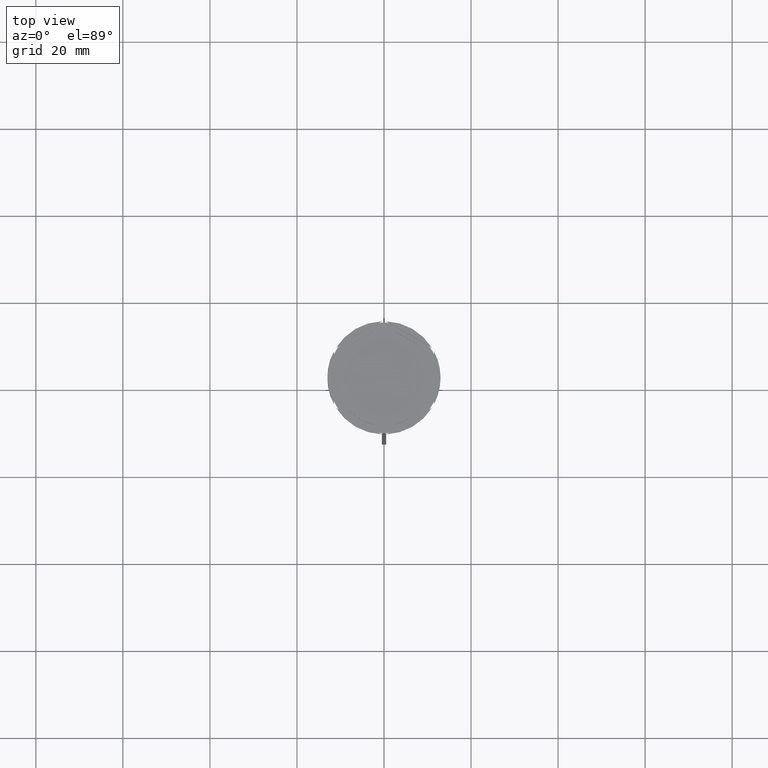
[diagram: clean part render]
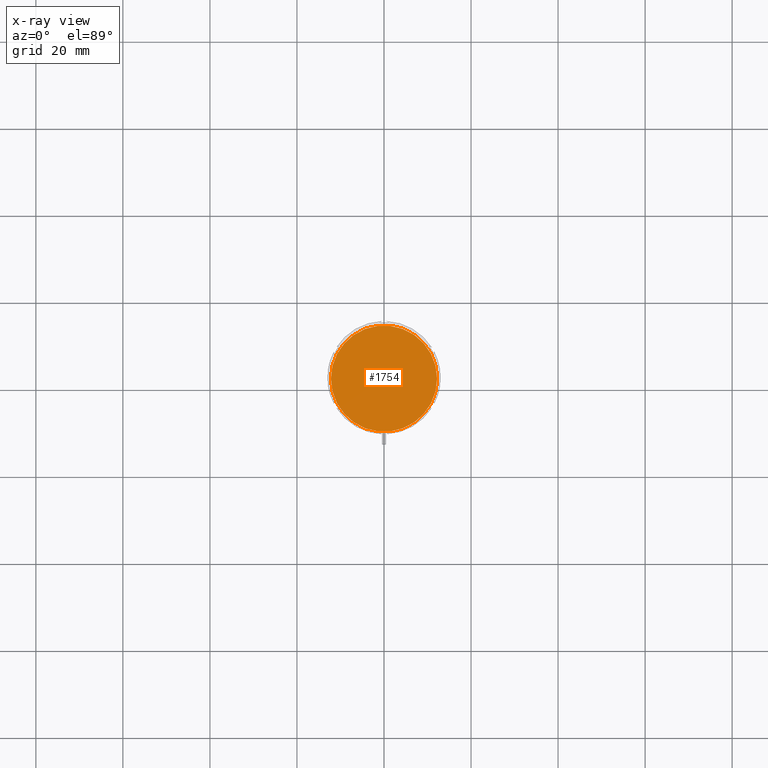
[diagram: x-ray — body ghosted, one internal face saturated and labeled with its STEP entity id]
A machine part, top view, then the same camera in x-ray: the body is ghosted and one INTERNAL B-rep face — a face not visible from any outside direction — is saturated and labeled: STEP entity #1754.
In plain terms, the highlighted planar face has unit normal (0, 0, -1).
Its self-contained STEP definition (entity closure, byte-faithful):
#224 = AXIS2_PLACEMENT_3D ( 'NONE', #885, #2682, #2265 ) ;
#314 = DIRECTION ( 'NONE',  ( -1.000000000000000000, 0.000000000000000000, 0.000000000000000000 ) ) ;
#660 = DIRECTION ( 'NONE',  ( -1.000000000000000000, 0.000000000000000000, 0.000000000000000000 ) ) ;
#809 = VERTEX_POINT ( 'NONE', #2356 ) ;
#885 = CARTESIAN_POINT ( 'NONE',  ( 0.000000000000000000, 0.000000000000000000, -12.00000000000000000 ) ) ;
#1039 = DIRECTION ( 'NONE',  ( -0.000000000000000000, -0.000000000000000000, 1.000000000000000000 ) ) ;
#1089 = PLANE ( 'NONE',  #224 ) ;
#1092 = ORIENTED_EDGE ( 'NONE', *, *, #1224, .T. ) ;
#1224 = EDGE_CURVE ( 'NONE', #1586, #809, #1526, .T. ) ;
#1486 = CIRCLE ( 'NONE', #2881, 12.20000000000000639 ) ;
#1526 = CIRCLE ( 'NONE', #1912, 12.20000000000000639 ) ;
#1586 = VERTEX_POINT ( 'NONE', #2606 ) ;
#1754 = ADVANCED_FACE ( 'NONE', ( #2025 ), #1089, .F. ) ;
#1771 = CARTESIAN_POINT ( 'NONE',  ( 0.000000000000000000, 0.000000000000000000, -12.00000000000000000 ) ) ;
#1912 = AXIS2_PLACEMENT_3D ( 'NONE', #2389, #1039, #314 ) ;
#1948 = ORIENTED_EDGE ( 'NONE', *, *, #2244, .T. ) ;
#2025 = FACE_OUTER_BOUND ( 'NONE', #2633, .T. ) ;
#2244 = EDGE_CURVE ( 'NONE', #809, #1586, #1486, .T. ) ;
#2265 = DIRECTION ( 'NONE',  ( -1.000000000000000000, 0.000000000000000000, -0.000000000000000000 ) ) ;
#2356 = CARTESIAN_POINT ( 'NONE',  ( 12.20000000000000639, 1.512438796946981880E-15, -12.00000000000000000 ) ) ;
#2389 = CARTESIAN_POINT ( 'NONE',  ( 0.000000000000000000, 0.000000000000000000, -12.00000000000000000 ) ) ;
#2606 = CARTESIAN_POINT ( 'NONE',  ( -12.20000000000000639, 0.000000000000000000, -12.00000000000000000 ) ) ;
#2633 = EDGE_LOOP ( 'NONE', ( #1092, #1948 ) ) ;
#2669 = DIRECTION ( 'NONE',  ( -0.000000000000000000, -0.000000000000000000, 1.000000000000000000 ) ) ;
#2682 = DIRECTION ( 'NONE',  ( 0.000000000000000000, 0.000000000000000000, -1.000000000000000000 ) ) ;
#2881 = AXIS2_PLACEMENT_3D ( 'NONE', #1771, #2669, #660 ) ;